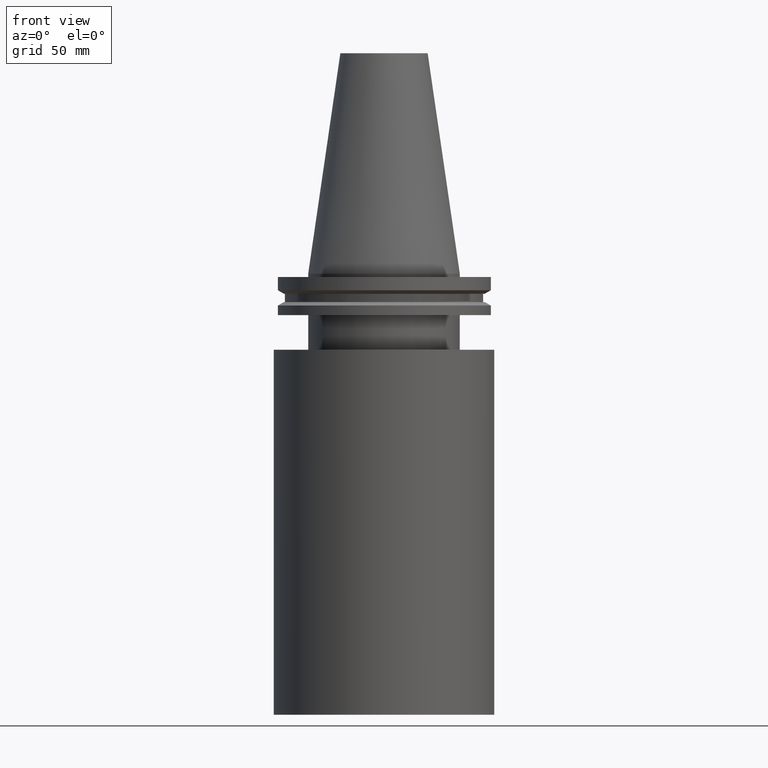
[diagram: clean part render]
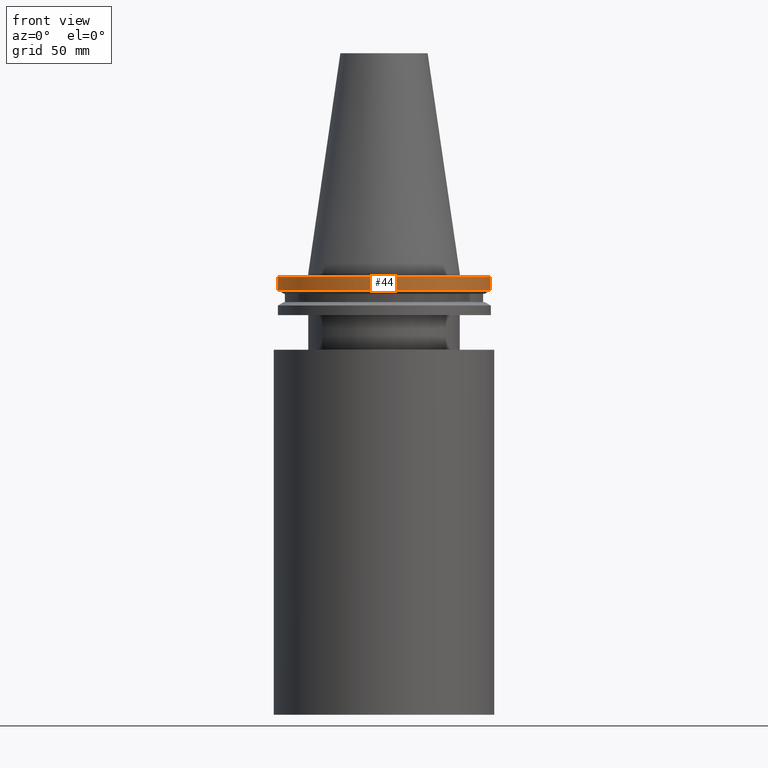
[diagram: same view with one face highlighted and labeled with its STEP entity id]
A machine part, front view. The second image highlights one B-rep face of the part: STEP entity #44.
In plain terms, the highlighted cylindrical surface (bore or boss wall) has radius 49.215 mm, axis along (-0, -0, 1).
Its self-contained STEP definition (entity closure, byte-faithful):
#7 = CARTESIAN_POINT ( 'NONE',  ( 49.21499999999999631, 0.000000000000000000, -1.499999999999987566 ) ) ;
#44 = ADVANCED_FACE ( 'NONE', ( #385, #387 ), #380, .T. ) ;
#56 = AXIS2_PLACEMENT_3D ( 'NONE', #337, #83, #305 ) ;
#83 = DIRECTION ( 'NONE',  ( -0.000000000000000000, -0.000000000000000000, 1.000000000000000000 ) ) ;
#89 = EDGE_CURVE ( 'NONE', #222, #222, #205, .T. ) ;
#91 = EDGE_LOOP ( 'NONE', ( #150 ) ) ;
#92 = VERTEX_POINT ( 'NONE', #182 ) ;
#102 = CARTESIAN_POINT ( 'NONE',  ( 0.000000000000000000, 0.000000000000000000, 101.5999999999999943 ) ) ;
#109 = DIRECTION ( 'NONE',  ( -0.000000000000000000, -0.000000000000000000, 1.000000000000000000 ) ) ;
#110 = DIRECTION ( 'NONE',  ( -0.000000000000000000, -0.000000000000000000, 1.000000000000000000 ) ) ;
#129 = EDGE_LOOP ( 'NONE', ( #278 ) ) ;
#150 = ORIENTED_EDGE ( 'NONE', *, *, #235, .T. ) ;
#182 = CARTESIAN_POINT ( 'NONE',  ( 49.21500000000000341, 0.000000000000000000, -7.602389855251287187 ) ) ;
#186 = AXIS2_PLACEMENT_3D ( 'NONE', #102, #109, #293 ) ;
#205 = CIRCLE ( 'NONE', #339, 49.21499999999999631 ) ;
#221 = CIRCLE ( 'NONE', #56, 49.21500000000000341 ) ;
#222 = VERTEX_POINT ( 'NONE', #7 ) ;
#235 = EDGE_CURVE ( 'NONE', #92, #92, #221, .T. ) ;
#278 = ORIENTED_EDGE ( 'NONE', *, *, #89, .F. ) ;
#293 = DIRECTION ( 'NONE',  ( 1.000000000000000000, 0.000000000000000000, 0.000000000000000000 ) ) ;
#299 = DIRECTION ( 'NONE',  ( 1.000000000000000000, 0.000000000000000000, 0.000000000000000000 ) ) ;
#305 = DIRECTION ( 'NONE',  ( 1.000000000000000000, 0.000000000000000000, 0.000000000000000000 ) ) ;
#337 = CARTESIAN_POINT ( 'NONE',  ( 0.000000000000000000, 0.000000000000000000, -7.602389855251287187 ) ) ;
#339 = AXIS2_PLACEMENT_3D ( 'NONE', #350, #110, #299 ) ;
#350 = CARTESIAN_POINT ( 'NONE',  ( 0.000000000000000000, 0.000000000000000000, -1.499999999999987566 ) ) ;
#380 = CYLINDRICAL_SURFACE ( 'NONE', #186, 49.21499999999999631 ) ;
#385 = FACE_OUTER_BOUND ( 'NONE', #129, .T. ) ;
#387 = FACE_OUTER_BOUND ( 'NONE', #91, .T. ) ;